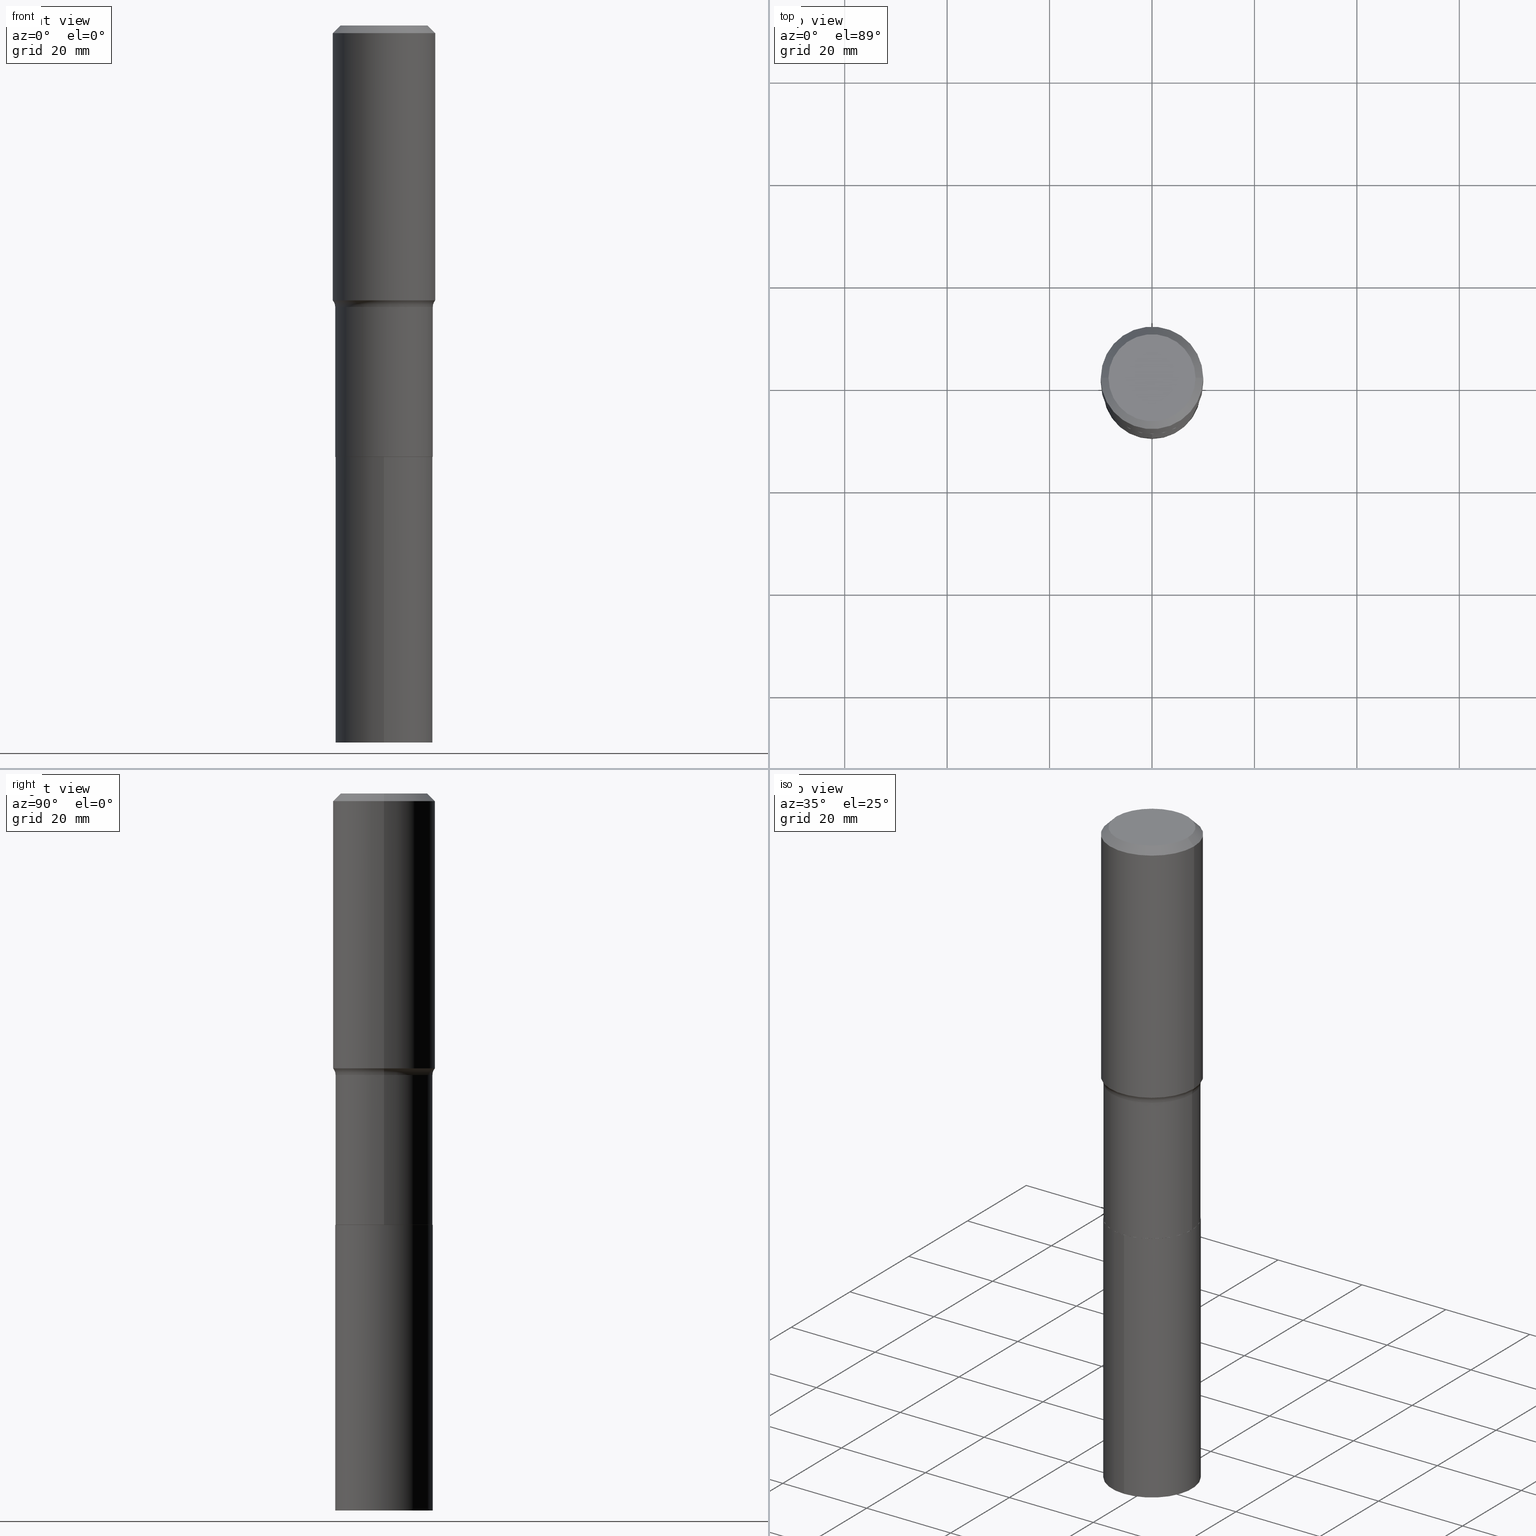
[diagram: canonical four-view strip — front | top / right | iso, engineering-drawing reading convention]
A machine part, canonical four-view strip (front | top / right | iso — engineering-drawing reading convention). The complete STEP part file that produces these views, byte-faithful:
ISO-10303-21;
HEADER;
FILE_DESCRIPTION (( 'STEP AP203' ),
    '1' );
FILE_NAME ('58861.STEP',
    '2024-04-19T14:46:31',
    ( '' ),
    ( '' ),
    'SwSTEP 2.0',
    'SolidWorks 2023',
    '' );
FILE_SCHEMA (( 'CONFIG_CONTROL_DESIGN' ));
ENDSEC;

DATA;
#1 = CARTESIAN_POINT ( 'NONE',  ( 0.000000000000000000, 0.000000000000000000, 0.000000000000000000 ) ) ;
#2 = ORIENTED_EDGE ( 'NONE', *, *, #219, .T. ) ;
#3 = ADVANCED_FACE ( 'NONE', ( #258 ), #411, .T. ) ;
#4 = DIRECTION ( 'NONE',  ( -6.982962677686265922E-15, -1.000000000000000000, 2.913971193241880372E-15 ) ) ;
#5 = FACE_OUTER_BOUND ( 'NONE', #6, .T. ) ;
#6 = EDGE_LOOP ( 'NONE', ( #194, #341, #262, #331 ) ) ;
#7 = DIRECTION ( 'NONE',  ( -2.445468806185136597E-29, 3.491481338843145583E-15, 1.000000000000000000 ) ) ;
#8 = ORIENTED_EDGE ( 'NONE', *, *, #208, .T. ) ;
#9 = AXIS2_PLACEMENT_3D ( 'NONE', #388, #83, #63 ) ;
#10 = DIRECTION ( 'NONE',  ( -2.445468806185136597E-29, 3.491481338843145583E-15, 1.000000000000000000 ) ) ;
#11 = APPROVAL_DATE_TIME ( #53, #442 ) ;
#12 = CARTESIAN_POINT ( 'NONE',  ( 1.444171603492641547E-30, -2.061894304653832726E-16, -0.05905500000000037109 ) ) ;
#13 = APPROVAL_ROLE ( '' ) ;
#14 = CARTESIAN_POINT ( 'NONE',  ( 1.347893496593123646E-28, -1.924434684343564878E-14, -5.511800000000000033 ) ) ;
#15 = ORIENTED_EDGE ( 'NONE', *, *, #23, .F. ) ;
#16 = FACE_OUTER_BOUND ( 'NONE', #37, .T. ) ;
#17 = AXIS2_PLACEMENT_3D ( 'NONE', #338, #113, #45 ) ;
#18 = EDGE_CURVE ( 'NONE', #302, #261, #298, .T. ) ;
#19 = DIRECTION ( 'NONE',  ( -2.444960686371016422E-29, 3.492208995337349843E-15, 1.000000000000000000 ) ) ;
#20 = CIRCLE ( 'NONE', #60, 0.3750000000000000555 ) ;
#21 = AXIS2_PLACEMENT_3D ( 'NONE', #384, #356, #282 ) ;
#22 = DIRECTION ( 'NONE',  ( 1.000000000000000000, -6.982962677686267499E-15, 4.876152824003125403E-29 ) ) ;
#23 = EDGE_CURVE ( 'NONE', #302, #185, #139, .T. ) ;
#24 = DESIGN_CONTEXT ( 'detailed design', #322, 'design' ) ;
#25 = ORIENTED_EDGE ( 'NONE', *, *, #130, .F. ) ;
#26 = CYLINDRICAL_SURFACE ( 'NONE', #108, 0.3937000000000001609 ) ;
#27 = ADVANCED_FACE ( 'NONE', ( #204 ), #171, .F. ) ;
#28 = FACE_OUTER_BOUND ( 'NONE', #59, .T. ) ;
#29 = SECURITY_CLASSIFICATION ( '', '', #250 ) ;
#30 = CC_DESIGN_SECURITY_CLASSIFICATION ( #29, ( #335 ) ) ;
#31 = CARTESIAN_POINT ( 'NONE',  ( 0.4549999999999998490, -1.073386108000546942E-14, -2.164299999999999446 ) ) ;
#32 = EDGE_CURVE ( 'NONE', #227, #190, #393, .T. ) ;
#33 = PERSON_AND_ORGANIZATION ( #274, #416 ) ;
#34 = CARTESIAN_POINT ( 'NONE',  ( -0.3745000000000000551, -8.916071277914525019E-15, -3.315799999999999859 ) ) ;
#35 = LINE ( 'NONE', #313, #211 ) ;
#36 = CARTESIAN_POINT ( 'NONE',  ( 0.3346450000000000258, -2.601499422326145188E-15, 4.096137381465387809E-18 ) ) ;
#37 = EDGE_LOOP ( 'NONE', ( #254, #50 ) ) ;
#38 = ADVANCED_FACE ( 'NONE', ( #367 ), #340, .F. ) ;
#39 = DIRECTION ( 'NONE',  ( -2.438088387897960049E-29, 3.491481338843145188E-15, 1.000000000000000000 ) ) ;
#40 = EDGE_CURVE ( 'NONE', #261, #227, #228, .T. ) ;
#41 = EDGE_LOOP ( 'NONE', ( #291, #8, #432, #327 ) ) ;
#42 = CIRCLE ( 'NONE', #270, 0.3937000000000000499 ) ;
#43 = CIRCLE ( 'NONE', #445, 0.3346450000000000258 ) ;
#44 = CARTESIAN_POINT ( 'NONE',  ( 1.444171603492641547E-30, -2.061894304653832726E-16, -0.05905500000000037109 ) ) ;
#45 = DIRECTION ( 'NONE',  ( -1.000000000000000000, 6.982962677686265922E-15, -4.876176775795935793E-29 ) ) ;
#46 = ORIENTED_EDGE ( 'NONE', *, *, #343, .T. ) ;
#47 = CARTESIAN_POINT ( 'NONE',  ( 8.107462733145581975E-29, -1.157530808266667831E-14, -3.315299999999999248 ) ) ;
#48 = CARTESIAN_POINT ( 'NONE',  ( 8.108685467548674776E-29, -1.157705382333610061E-14, -3.315799999999999859 ) ) ;
#49 = CARTESIAN_POINT ( 'NONE',  ( -2.618611004132215121E-15, -0.3750000000000192624, -5.511799999999999145 ) ) ;
#50 = ORIENTED_EDGE ( 'NONE', *, *, #265, .T. ) ;
#51 = ORIENTED_EDGE ( 'NONE', *, *, #168, .T. ) ;
#52 = PLANE ( 'NONE',  #457 ) ;
#53 = DATE_AND_TIME ( #332, #180 ) ;
#54 = CARTESIAN_POINT ( 'NONE',  ( -0.3346450000000000258, 2.439908260507010921E-15, 4.096137381431418257E-18 ) ) ;
#55 = AXIS2_PLACEMENT_3D ( 'NONE', #337, #92, #117 ) ;
#56 = FACE_OUTER_BOUND ( 'NONE', #191, .T. ) ;
#57 = CALENDAR_DATE ( 2024, 19, 4 ) ;
#58 = DIRECTION ( 'NONE',  ( 1.000000000000000000, -6.982962677686268288E-15, 0.000000000000000000 ) ) ;
#59 = EDGE_LOOP ( 'NONE', ( #336, #402, #292, #306 ) ) ;
#60 = AXIS2_PLACEMENT_3D ( 'NONE', #401, #94, #223 ) ;
#61 = CC_DESIGN_APPROVAL ( #138, ( #268 ) ) ;
#62 = CARTESIAN_POINT ( 'NONE',  ( 1.347781913481942727E-28, -1.924594477709692367E-14, -5.511800000000000033 ) ) ;
#63 = DIRECTION ( 'NONE',  ( 1.000000000000000000, -6.982962677686265922E-15, 0.000000000000000000 ) ) ;
#64 = DIRECTION ( 'NONE',  ( 6.982962677686265922E-15, 1.000000000000000000, -3.492208995337349843E-15 ) ) ;
#65 = LINE ( 'NONE', #247, #206 ) ;
#66 = PRODUCT_DEFINITION_SHAPE ( 'NONE', 'NONE',  #268 ) ;
#67 = DIRECTION ( 'NONE',  ( -6.982962677686266711E-15, -1.000000000000000000, 3.491481338843145583E-15 ) ) ;
#68 = DIRECTION ( 'NONE',  ( -2.444960686371016703E-29, 3.492208995337349843E-15, 1.000000000000000000 ) ) ;
#69 = AXIS2_PLACEMENT_3D ( 'NONE', #86, #10, #58 ) ;
#70 = CALENDAR_DATE ( 2024, 19, 4 ) ;
#71 = VECTOR ( 'NONE', #68, 39.37007874015748143 ) ;
#72 = ADVANCED_BREP_SHAPE_REPRESENTATION ( '58861', ( #74, #378, #288 ), #374 ) ;
#73 = EDGE_CURVE ( 'NONE', #465, #307, #42, .T. ) ;
#74 = MANIFOLD_SOLID_BREP ( 'Body-Move/Copy2[1]', #346 ) ;
#75 =( NAMED_UNIT ( * ) SI_UNIT ( $, .STERADIAN. ) SOLID_ANGLE_UNIT ( ) );
#76 = PERSON_AND_ORGANIZATION ( #274, #416 ) ;
#77 = EDGE_LOOP ( 'NONE', ( #160, #233, #81, #85 ) ) ;
#78 = APPLICATION_CONTEXT ( 'configuration controlled 3d designs of mechanical parts and assemblies' ) ;
#79 = DIRECTION ( 'NONE',  ( -1.000000000000000000, 6.982962677686265922E-15, 0.000000000000000000 ) ) ;
#80 = APPROVAL_DATE_TIME ( #358, #138 ) ;
#81 = ORIENTED_EDGE ( 'NONE', *, *, #280, .F. ) ;
#82 = CIRCLE ( 'NONE', #318, 0.3937000000000002720 ) ;
#83 = DIRECTION ( 'NONE',  ( -2.445468806185136597E-29, 3.491481338843145583E-15, 1.000000000000000000 ) ) ;
#84 = DIRECTION ( 'NONE',  ( -1.000000000000000000, 7.105427357601001859E-15, 0.000000000000000000 ) ) ;
#85 = ORIENTED_EDGE ( 'NONE', *, *, #18, .F. ) ;
#86 = CARTESIAN_POINT ( 'NONE',  ( 8.108685467548674776E-29, -1.157705382333610061E-14, -3.315799999999999859 ) ) ;
#87 = EDGE_LOOP ( 'NONE', ( #119, #225, #2, #213 ) ) ;
#88 = ORIENTED_EDGE ( 'NONE', *, *, #137, .F. ) ;
#89 = ADVANCED_FACE ( 'NONE', ( #5 ), #235, .T. ) ;
#90 = DIRECTION ( 'NONE',  ( 1.000000000000000000, -6.982962677686266711E-15, 4.883557194083112901E-29 ) ) ;
#91 = AXIS2_PLACEMENT_3D ( 'NONE', #48, #361, #125 ) ;
#92 = DIRECTION ( 'NONE',  ( -2.445468806185136597E-29, 3.491481338843145583E-15, 1.000000000000000000 ) ) ;
#93 = AXIS2_PLACEMENT_3D ( 'NONE', #47, #440, #399 ) ;
#94 = DIRECTION ( 'NONE',  ( -2.444960686371016422E-29, 3.492208995337349843E-15, 1.000000000000000000 ) ) ;
#95 = EDGE_CURVE ( 'NONE', #257, #190, #323, .T. ) ;
#96 = EDGE_CURVE ( 'NONE', #391, #465, #164, .T. ) ;
#97 = DIRECTION ( 'NONE',  ( -2.445468806185136877E-29, 3.491481338843145188E-15, 1.000000000000000000 ) ) ;
#98 = TOROIDAL_SURFACE ( 'NONE', #131, 0.4549999999999998490, 0.08000000000000007105 ) ;
#99 = ORIENTED_EDGE ( 'NONE', *, *, #369, .F. ) ;
#100 = AXIS2_PLACEMENT_3D ( 'NONE', #450, #240, #64 ) ;
#101 = LINE ( 'NONE', #458, #71 ) ;
#102 = CARTESIAN_POINT ( 'NONE',  ( -0.3749999999999998335, -6.901425313062074700E-15, -2.164299999999999446 ) ) ;
#103 = CARTESIAN_POINT ( 'NONE',  ( 0.3937000000000001609, -2.749192406205084400E-15, 1.919750796630860732E-29 ) ) ;
#104 = PERSON_AND_ORGANIZATION_ROLE ( 'design_owner' ) ;
#105 = FACE_OUTER_BOUND ( 'NONE', #198, .T. ) ;
#106 = CARTESIAN_POINT ( 'NONE',  ( 8.107462733145581975E-29, -1.157530808266667831E-14, -3.315299999999999248 ) ) ;
#107 = AXIS2_PLACEMENT_3D ( 'NONE', #126, #7, #437 ) ;
#108 = AXIS2_PLACEMENT_3D ( 'NONE', #379, #414, #241 ) ;
#109 = APPROVAL_ROLE ( '' ) ;
#110 = EDGE_LOOP ( 'NONE', ( #305, #197, #51, #88 ) ) ;
#111 = EDGE_LOOP ( 'NONE', ( #435, #124 ) ) ;
#112 = FACE_OUTER_BOUND ( 'NONE', #87, .T. ) ;
#113 = DIRECTION ( 'NONE',  ( 2.438088387897960049E-29, -3.491481338843145188E-15, -1.000000000000000000 ) ) ;
#114 = DIRECTION ( 'NONE',  ( -2.445468806185136597E-29, 3.491481338843145583E-15, 1.000000000000000000 ) ) ;
#115 = COORDINATED_UNIVERSAL_TIME_OFFSET ( 5, 0, .BEHIND. ) ;
#116 = VERTEX_POINT ( 'NONE', #49 ) ;
#117 = DIRECTION ( 'NONE',  ( 1.000000000000000000, -6.982962677686265922E-15, 4.876176775795935793E-29 ) ) ;
#118 = PERSON_AND_ORGANIZATION_ROLE ( 'design_supplier' ) ;
#119 = ORIENTED_EDGE ( 'NONE', *, *, #95, .F. ) ;
#120 = DIRECTION ( 'NONE',  ( 2.445468806185136597E-29, -3.491481338843145583E-15, -1.000000000000000000 ) ) ;
#121 = ORIENTED_EDGE ( 'NONE', *, *, #216, .T. ) ;
#122 = APPROVAL_PERSON_ORGANIZATION ( #355, #442, #109 ) ;
#123 =( NAMED_UNIT ( * ) PLANE_ANGLE_UNIT ( ) SI_UNIT ( $, .RADIAN. ) );
#124 = ORIENTED_EDGE ( 'NONE', *, *, #417, .F. ) ;
#125 = DIRECTION ( 'NONE',  ( -6.982962677686265922E-15, -1.000000000000000000, 2.913971193241880372E-15 ) ) ;
#126 = CARTESIAN_POINT ( 'NONE',  ( -1.001697619218024707E-46, 1.430158722866394097E-32, 4.096137381448120692E-18 ) ) ;
#127 = PLANE ( 'NONE',  #17 ) ;
#128 = EDGE_CURVE ( 'NONE', #146, #391, #188, .T. ) ;
#129 = DIRECTION ( 'NONE',  ( 2.445468806185136597E-29, -3.491481338843145583E-15, -1.000000000000000000 ) ) ;
#130 = EDGE_CURVE ( 'NONE', #185, #302, #310, .T. ) ;
#131 = AXIS2_PLACEMENT_3D ( 'NONE', #167, #447, #207 ) ;
#132 = DIRECTION ( 'NONE',  ( 1.000000000000000000, -6.982962677686265922E-15, 4.876176775795935793E-29 ) ) ;
#133 = AXIS2_PLACEMENT_3D ( 'NONE', #106, #279, #382 ) ;
#134 = ADVANCED_FACE ( 'NONE', ( #56 ), #52, .F. ) ;
#135 = DIRECTION ( 'NONE',  ( 1.000000000000000000, -6.982962677686269077E-15, 0.000000000000000000 ) ) ;
#136 = ORIENTED_EDGE ( 'NONE', *, *, #339, .T. ) ;
#137 = EDGE_CURVE ( 'NONE', #396, #446, #20, .T. ) ;
#138 = APPROVAL ( #172, 'UNSPECIFIED' ) ;
#139 = CIRCLE ( 'NONE', #69, 0.3745000000000000551 ) ;
#140 = VECTOR ( 'NONE', #149, 39.37007874015748143 ) ;
#141 = ADVANCED_FACE ( 'NONE', ( #466 ), #203, .T. ) ;
#142 = CARTESIAN_POINT ( 'NONE',  ( 5.292728137226489958E-29, -7.556613061658217748E-15, -2.164299999999999446 ) ) ;
#143 = CARTESIAN_POINT ( 'NONE',  ( 8.108685467548674776E-29, -1.157705382333610061E-14, -3.315799999999999859 ) ) ;
#144 = APPROVAL ( #148, 'UNSPECIFIED' ) ;
#145 = DIRECTION ( 'NONE',  ( 1.000000000000000000, -6.982962677686266711E-15, 4.876176775795935793E-29 ) ) ;
#146 = VERTEX_POINT ( 'NONE', #54 ) ;
#147 = CARTESIAN_POINT ( 'NONE',  ( 8.108685467548674776E-29, -1.157705382333610061E-14, -3.315799999999999859 ) ) ;
#148 = APPROVAL_STATUS ( 'not_yet_approved' ) ;
#149 = DIRECTION ( 'NONE',  ( -2.445468806185136877E-29, 3.491481338843145188E-15, 1.000000000000000000 ) ) ;
#150 = VECTOR ( 'NONE', #312, 39.37007874015748143 ) ;
#151 = DIRECTION ( 'NONE',  ( 1.000000000000000000, -6.982962677686281699E-15, 0.000000000000000000 ) ) ;
#152 = PERSON_AND_ORGANIZATION ( #274, #416 ) ;
#153 = ADVANCED_FACE ( 'NONE', ( #112 ), #98, .F. ) ;
#154 = CARTESIAN_POINT ( 'NONE',  ( 0.000000000000000000, 0.000000000000000000, 0.000000000000000000 ) ) ;
#155 = APPROVAL_PERSON_ORGANIZATION ( #152, #138, #13 ) ;
#156 = EDGE_CURVE ( 'NONE', #329, #257, #82, .T. ) ;
#157 = DIRECTION ( 'NONE',  ( -2.445468806185136597E-29, 3.491481338843145583E-15, 1.000000000000000000 ) ) ;
#158 = ORIENTED_EDGE ( 'NONE', *, *, #256, .F. ) ;
#159 = DIRECTION ( 'NONE',  ( 7.105427357601001859E-15, 1.000000000000000000, -3.491481338843145583E-15 ) ) ;
#160 = ORIENTED_EDGE ( 'NONE', *, *, #23, .T. ) ;
#161 = EDGE_LOOP ( 'NONE', ( #230, #264, #372, #439 ) ) ;
#162 = DATE_AND_TIME ( #57, #300 ) ;
#163 = LOCAL_TIME ( 10, 46, 31.00000000000000000, #115 ) ;
#164 = LINE ( 'NONE', #231, #251 ) ;
#165 = CARTESIAN_POINT ( 'NONE',  ( 1.444171603492641547E-30, -2.061894304653832726E-16, -0.05905500000000037109 ) ) ;
#166 = DIRECTION ( 'NONE',  ( -6.982962677686265922E-15, -1.000000000000000000, 3.492208995337349843E-15 ) ) ;
#167 = CARTESIAN_POINT ( 'NONE',  ( 5.292728137226489958E-29, -7.556613061658217748E-15, -2.164299999999999446 ) ) ;
#168 = EDGE_CURVE ( 'NONE', #116, #446, #410, .T. ) ;
#169 = CIRCLE ( 'NONE', #91, 0.3750000000000000555 ) ;
#170 = ADVANCED_FACE ( 'NONE', ( #16 ), #127, .F. ) ;
#171 = TOROIDAL_SURFACE ( 'NONE', #334, 0.4549999999999998490, 0.08000000000000007105 ) ;
#172 = APPROVAL_STATUS ( 'not_yet_approved' ) ;
#173 = AXIS2_PLACEMENT_3D ( 'NONE', #165, #120, #431 ) ;
#174 = ADVANCED_FACE ( 'NONE', ( #434 ), #319, .T. ) ;
#175 = PERSON_AND_ORGANIZATION ( #274, #416 ) ;
#176 = PERSON_AND_ORGANIZATION ( #274, #416 ) ;
#177 = EDGE_CURVE ( 'NONE', #446, #396, #169, .T. ) ;
#178 = CARTESIAN_POINT ( 'NONE',  ( 0.3749999999999998890, -1.419391908679902675E-14, -3.315299999999999248 ) ) ;
#179 = UNCERTAINTY_MEASURE_WITH_UNIT (LENGTH_MEASURE( 1.000000000000000082E-05 ), #364, 'distance_accuracy_value', 'NONE');
#180 = LOCAL_TIME ( 10, 46, 31.00000000000000000, #224 ) ;
#181 = COORDINATED_UNIVERSAL_TIME_OFFSET ( 5, 0, .BEHIND. ) ;
#182 = ADVANCED_FACE ( 'NONE', ( #186 ), #324, .T. ) ;
#183 = CARTESIAN_POINT ( 'NONE',  ( 8.108685467548674776E-29, -1.157705382333610061E-14, -3.315799999999999859 ) ) ;
#184 = LENGTH_MEASURE_WITH_UNIT ( LENGTH_MEASURE( 0.02539999999999999897 ), #260 );
#185 = VERTEX_POINT ( 'NONE', #286 ) ;
#186 = FACE_OUTER_BOUND ( 'NONE', #433, .T. ) ;
#187 = ORIENTED_EDGE ( 'NONE', *, *, #177, .F. ) ;
#188 = CIRCLE ( 'NONE', #107, 0.3346450000000000258 ) ;
#189 = AXIS2_PLACEMENT_3D ( 'NONE', #142, #215, #285 ) ;
#190 = VERTEX_POINT ( 'NONE', #102 ) ;
#191 = EDGE_LOOP ( 'NONE', ( #15, #25 ) ) ;
#192 = DIRECTION ( 'NONE',  ( 1.000000000000000000, -6.982962677686268288E-15, 0.000000000000000000 ) ) ;
#193 = CARTESIAN_POINT ( 'NONE',  ( -0.4549999999999998490, -4.323643613949763764E-15, -2.164299999999999446 ) ) ;
#194 = ORIENTED_EDGE ( 'NONE', *, *, #280, .T. ) ;
#195 = DIRECTION ( 'NONE',  ( -2.445468806185136597E-29, 3.491481338843145583E-15, 1.000000000000000000 ) ) ;
#196 = EDGE_LOOP ( 'NONE', ( #266, #387, #136, #290 ) ) ;
#197 = ORIENTED_EDGE ( 'NONE', *, *, #417, .T. ) ;
#198 = EDGE_LOOP ( 'NONE', ( #328, #425 ) ) ;
#199 = ORIENTED_EDGE ( 'NONE', *, *, #339, .F. ) ;
#200 = LOCAL_TIME ( 10, 46, 31.00000000000000000, #423 ) ;
#201 = DIRECTION ( 'NONE',  ( -2.445468806185136597E-29, 3.491481338843145583E-15, 1.000000000000000000 ) ) ;
#202 = EDGE_LOOP ( 'NONE', ( #99, #295, #352, #443 ) ) ;
#203 = CYLINDRICAL_SURFACE ( 'NONE', #243, 0.3749999999999998335 ) ;
#204 = FACE_OUTER_BOUND ( 'NONE', #202, .T. ) ;
#205 = EDGE_CURVE ( 'NONE', #366, #190, #65, .T. ) ;
#206 = VECTOR ( 'NONE', #383, 39.37007874015748143 ) ;
#207 = DIRECTION ( 'NONE',  ( 1.000000000000000000, -6.982962677686266711E-15, 4.883557194083112901E-29 ) ) ;
#208 = EDGE_CURVE ( 'NONE', #366, #261, #311, .T. ) ;
#209 = DIRECTION ( 'NONE',  ( -2.444960686371016422E-29, 3.492208995337349843E-15, 1.000000000000000000 ) ) ;
#210 = CARTESIAN_POINT ( 'NONE',  ( -1.001697619218024707E-46, 1.430158722866394097E-32, 4.096137381448120692E-18 ) ) ;
#211 = VECTOR ( 'NONE', #348, 39.37007874015748143 ) ;
#212 = CC_DESIGN_PERSON_AND_ORGANIZATION_ASSIGNMENT ( #76, #118, ( #335 ) ) ;
#213 = ORIENTED_EDGE ( 'NONE', *, *, #32, .T. ) ;
#214 = EDGE_CURVE ( 'NONE', #190, #227, #244, .T. ) ;
#215 = DIRECTION ( 'NONE',  ( -2.445468806185136597E-29, 3.491481338843145583E-15, 1.000000000000000000 ) ) ;
#216 = EDGE_CURVE ( 'NONE', #257, #307, #242, .T. ) ;
#217 = FACE_OUTER_BOUND ( 'NONE', #196, .T. ) ;
#218 = CARTESIAN_POINT ( 'NONE',  ( 5.167022714851833902E-29, -7.377139033896165058E-15, -2.112896595443491066 ) ) ;
#219 = EDGE_CURVE ( 'NONE', #329, #227, #408, .T. ) ;
#220 = CIRCLE ( 'NONE', #385, 0.3750000000000000555 ) ;
#221 = DATE_TIME_ROLE ( 'creation_date' ) ;
#222 = APPLICATION_PROTOCOL_DEFINITION ( 'international standard', 'config_control_design', 1994, #78 ) ;
#223 = DIRECTION ( 'NONE',  ( -6.982962677686265922E-15, -1.000000000000000000, 2.913971193241880372E-15 ) ) ;
#224 = COORDINATED_UNIVERSAL_TIME_OFFSET ( 5, 0, .BEHIND. ) ;
#225 = ORIENTED_EDGE ( 'NONE', *, *, #156, .F. ) ;
#226 = CARTESIAN_POINT ( 'NONE',  ( 8.108685467548674776E-29, -1.157705382333610061E-14, -3.315799999999999859 ) ) ;
#227 = VERTEX_POINT ( 'NONE', #451 ) ;
#228 = LINE ( 'NONE', #389, #468 ) ;
#229 = CIRCLE ( 'NONE', #21, 0.3750000000000000555 ) ;
#230 = ORIENTED_EDGE ( 'NONE', *, *, #96, .F. ) ;
#231 = CARTESIAN_POINT ( 'NONE',  ( 0.3937000000000000499, -2.907167492188035412E-15, -0.05905500000000037109 ) ) ;
#232 = DIRECTION ( 'NONE',  ( 1.000000000000000000, -6.982962677686268288E-15, 0.000000000000000000 ) ) ;
#233 = ORIENTED_EDGE ( 'NONE', *, *, #256, .T. ) ;
#234 = EDGE_CURVE ( 'NONE', #116, #430, #229, .T. ) ;
#235 = CYLINDRICAL_SURFACE ( 'NONE', #55, 0.3749999999999998335 ) ;
#236 = CIRCLE ( 'NONE', #93, 0.3749999999999998890 ) ;
#237 = ORIENTED_EDGE ( 'NONE', *, *, #73, .F. ) ;
#238 = PRODUCT_RELATED_PRODUCT_CATEGORY ( 'detail', '', ( #316 ) ) ;
#239 = CARTESIAN_POINT ( 'NONE',  ( 2.664535259100510198E-15, 0.3749999999999883982, -3.315800000000000747 ) ) ;
#240 = DIRECTION ( 'NONE',  ( 2.444960686371015862E-29, -3.492208995337349843E-15, -1.000000000000000000 ) ) ;
#241 = DIRECTION ( 'NONE',  ( 1.000000000000000000, -6.982962677686266711E-15, 4.876176775795935793E-29 ) ) ;
#242 = LINE ( 'NONE', #415, #140 ) ;
#243 = AXIS2_PLACEMENT_3D ( 'NONE', #154, #444, #132 ) ;
#244 = CIRCLE ( 'NONE', #189, 0.3749999999999998335 ) ;
#245 = ORIENTED_EDGE ( 'NONE', *, *, #208, .F. ) ;
#246 = APPROVAL_ROLE ( '' ) ;
#247 = CARTESIAN_POINT ( 'NONE',  ( -0.3749999999999998335, 2.664535259100374514E-15, -1.844600658845588757E-29 ) ) ;
#248 = DIRECTION ( 'NONE',  ( -6.982962677686265922E-15, -1.000000000000000000, 2.913971193241880372E-15 ) ) ;
#249 = CC_DESIGN_DATE_AND_TIME_ASSIGNMENT ( #162, #301, ( #29 ) ) ;
#250 = SECURITY_CLASSIFICATION_LEVEL ( 'unclassified' ) ;
#251 = VECTOR ( 'NONE', #365, 39.37007874015748143 ) ;
#252 = CIRCLE ( 'NONE', #412, 0.3937000000000002720 ) ;
#253 = DATE_AND_TIME ( #70, #200 ) ;
#254 = ORIENTED_EDGE ( 'NONE', *, *, #128, .T. ) ;
#255 = DIRECTION ( 'NONE',  ( 0.000000000000000000, 0.000000000000000000, 1.000000000000000000 ) ) ;
#256 = EDGE_CURVE ( 'NONE', #185, #366, #315, .T. ) ;
#257 = VERTEX_POINT ( 'NONE', #278 ) ;
#258 = FACE_OUTER_BOUND ( 'NONE', #161, .T. ) ;
#259 = ADVANCED_FACE ( 'NONE', ( #217 ), #26, .T. ) ;
#260 =( LENGTH_UNIT ( ) NAMED_UNIT ( * ) SI_UNIT ( $, .METRE. ) );
#261 = VERTEX_POINT ( 'NONE', #178 ) ;
#262 = ORIENTED_EDGE ( 'NONE', *, *, #32, .F. ) ;
#263 = CARTESIAN_POINT ( 'NONE',  ( 8.108685467548674776E-29, -1.157705382333610061E-14, -3.315799999999999859 ) ) ;
#264 = ORIENTED_EDGE ( 'NONE', *, *, #128, .F. ) ;
#265 = EDGE_CURVE ( 'NONE', #391, #146, #43, .T. ) ;
#266 = ORIENTED_EDGE ( 'NONE', *, *, #216, .F. ) ;
#267 = COORDINATED_UNIVERSAL_TIME_OFFSET ( 5, 0, .BEHIND. ) ;
#268 = PRODUCT_DEFINITION ( 'UNKNOWN', '', #335, #24 ) ;
#269 = DIRECTION ( 'NONE',  ( -2.445468806185136597E-29, 3.491481338843145583E-15, 1.000000000000000000 ) ) ;
#270 = AXIS2_PLACEMENT_3D ( 'NONE', #44, #195, #294 ) ;
#271 = CONICAL_SURFACE ( 'NONE', #325, 0.3745000000000000551, 0.7853981633971067744 ) ;
#272 = FACE_OUTER_BOUND ( 'NONE', #110, .T. ) ;
#273 = FACE_OUTER_BOUND ( 'NONE', #362, .T. ) ;
#274 = PERSON ( 'UNSPECIFIED', 'UNSPECIFIED', 'UNSPECIFIED', ('UNSPECIFIED'), ('UNSPECIFIED'), ('UNSPECIFIED') ) ;
#275 = CC_DESIGN_DATE_AND_TIME_ASSIGNMENT ( #422, #221, ( #268 ) ) ;
#276 = PLANE ( 'NONE',  #100 ) ;
#277 = DIMENSIONAL_EXPONENTS ( 1.000000000000000000, 0.000000000000000000, 0.000000000000000000, 0.000000000000000000, 0.000000000000000000, 0.000000000000000000, 0.000000000000000000 ) ;
#278 = CARTESIAN_POINT ( 'NONE',  ( -0.3937000000000002720, -4.579732283208647905E-15, -2.112896595443491066 ) ) ;
#279 = DIRECTION ( 'NONE',  ( -2.445468806185136597E-29, 3.491481338843145583E-15, 1.000000000000000000 ) ) ;
#280 = EDGE_CURVE ( 'NONE', #261, #366, #236, .T. ) ;
#281 = DIRECTION ( 'NONE',  ( -6.982962677686265922E-15, -1.000000000000000000, 2.913971193241880372E-15 ) ) ;
#282 = DIRECTION ( 'NONE',  ( -6.982962677686265922E-15, -1.000000000000000000, 2.913971193241880372E-15 ) ) ;
#283 = AXIS2_PLACEMENT_3D ( 'NONE', #14, #400, #166 ) ;
#284 = CIRCLE ( 'NONE', #9, 0.3937000000000000499 ) ;
#285 = DIRECTION ( 'NONE',  ( 1.000000000000000000, -6.982962677686265922E-15, 0.000000000000000000 ) ) ;
#286 = CARTESIAN_POINT ( 'NONE',  ( -0.3745000000000000551, -8.913422050740414606E-15, -3.315799999999999859 ) ) ;
#287 = APPROVAL_STATUS ( 'not_yet_approved' ) ;
#288 = AXIS2_PLACEMENT_3D ( 'NONE', #357, #255, #420 ) ;
#289 = CC_DESIGN_APPROVAL ( #144, ( #29 ) ) ;
#290 = ORIENTED_EDGE ( 'NONE', *, *, #438, .F. ) ;
#291 = ORIENTED_EDGE ( 'NONE', *, *, #205, .F. ) ;
#292 = ORIENTED_EDGE ( 'NONE', *, *, #73, .T. ) ;
#293 = ADVANCED_FACE ( 'NONE', ( #273 ), #455, .T. ) ;
#294 = DIRECTION ( 'NONE',  ( 1.000000000000000000, -6.982962677686265922E-15, 0.000000000000000000 ) ) ;
#295 = ORIENTED_EDGE ( 'NONE', *, *, #95, .T. ) ;
#296 = CARTESIAN_POINT ( 'NONE',  ( 8.108685467548674776E-29, -1.157705382333610061E-14, -3.315799999999999859 ) ) ;
#297 = CC_DESIGN_PERSON_AND_ORGANIZATION_ASSIGNMENT ( #33, #467, ( #268 ) ) ;
#298 = LINE ( 'NONE', #397, #380 ) ;
#299 = CARTESIAN_POINT ( 'NONE',  ( 0.3937000000000000499, -2.955381836670466588E-15, -0.05905500000000037109 ) ) ;
#300 = LOCAL_TIME ( 10, 46, 31.00000000000000000, #267 ) ;
#301 = DATE_TIME_ROLE ( 'classification_date' ) ;
#302 = VERTEX_POINT ( 'NONE', #418 ) ;
#303 = ORIENTED_EDGE ( 'NONE', *, *, #156, .T. ) ;
#304 = PERSON_AND_ORGANIZATION_ROLE ( 'classification_officer' ) ;
#305 = ORIENTED_EDGE ( 'NONE', *, *, #343, .F. ) ;
#306 = ORIENTED_EDGE ( 'NONE', *, *, #456, .F. ) ;
#307 = VERTEX_POINT ( 'NONE', #320 ) ;
#308 = AXIS2_PLACEMENT_3D ( 'NONE', #147, #19, #281 ) ;
#309 = DIRECTION ( 'NONE',  ( -2.445468806185136597E-29, 3.491481338843145583E-15, 1.000000000000000000 ) ) ;
#310 = CIRCLE ( 'NONE', #405, 0.3745000000000000551 ) ;
#311 = CIRCLE ( 'NONE', #133, 0.3749999999999998890 ) ;
#312 = DIRECTION ( 'NONE',  ( -0.7071067811863059882, 7.493145998869481680E-15, 0.7071067811867890462 ) ) ;
#313 = CARTESIAN_POINT ( 'NONE',  ( -0.3937000000000000499, 2.543002975739700240E-15, -0.05905500000000037109 ) ) ;
#314 = CARTESIAN_POINT ( 'NONE',  ( -0.3749999999999998890, -6.901425313062073912E-15, -3.315299999999999248 ) ) ;
#315 = LINE ( 'NONE', #34, #150 ) ;
#316 = PRODUCT ( '58861', '58861', '', ( #464 ) ) ;
#317 = CARTESIAN_POINT ( 'NONE',  ( 0.3937000000000002720, -1.012633144010124985E-14, -2.112896595443491066 ) ) ;
#318 = AXIS2_PLACEMENT_3D ( 'NONE', #413, #309, #135 ) ;
#319 = CONICAL_SURFACE ( 'NONE', #406, 0.3745000000000000551, 0.7853981633971067744 ) ;
#320 = CARTESIAN_POINT ( 'NONE',  ( -0.3937000000000000499, -9.942574814932580477E-16, -0.05905500000000037109 ) ) ;
#321 = CARTESIAN_POINT ( 'NONE',  ( -2.618611004132269158E-15, -0.3750000000000116573, -3.315799999999998526 ) ) ;
#322 = APPLICATION_CONTEXT ( 'configuration controlled 3d designs of mechanical parts and assemblies' ) ;
#323 = CIRCLE ( 'NONE', #426, 0.08000000000000002942 ) ;
#324 = CYLINDRICAL_SURFACE ( 'NONE', #449, 0.3937000000000001609 ) ;
#325 = AXIS2_PLACEMENT_3D ( 'NONE', #143, #114, #462 ) ;
#326 = CALENDAR_DATE ( 2024, 19, 4 ) ;
#327 = ORIENTED_EDGE ( 'NONE', *, *, #214, .F. ) ;
#328 = ORIENTED_EDGE ( 'NONE', *, *, #177, .T. ) ;
#329 = VERTEX_POINT ( 'NONE', #317 ) ;
#330 = DIRECTION ( 'NONE',  ( -2.445468806185136597E-29, 3.491481338843145583E-15, 1.000000000000000000 ) ) ;
#331 = ORIENTED_EDGE ( 'NONE', *, *, #40, .F. ) ;
#332 = CALENDAR_DATE ( 2024, 19, 4 ) ;
#333 = DIRECTION ( 'NONE',  ( 0.7071067811863059882, -2.468850131079726789E-15, 0.7071067811867890462 ) ) ;
#334 = AXIS2_PLACEMENT_3D ( 'NONE', #370, #330, #90 ) ;
#335 = PRODUCT_DEFINITION_FORMATION_WITH_SPECIFIED_SOURCE ( 'ANY', '', #316, .NOT_KNOWN. ) ;
#336 = ORIENTED_EDGE ( 'NONE', *, *, #265, .F. ) ;
#337 = CARTESIAN_POINT ( 'NONE',  ( 0.000000000000000000, 0.000000000000000000, 0.000000000000000000 ) ) ;
#338 = CARTESIAN_POINT ( 'NONE',  ( -5.008488096090123536E-47, 7.150793614331970485E-33, 2.048068690724060346E-18 ) ) ;
#339 = EDGE_CURVE ( 'NONE', #329, #465, #459, .T. ) ;
#340 = PLANE ( 'NONE',  #283 ) ;
#341 = ORIENTED_EDGE ( 'NONE', *, *, #205, .T. ) ;
#342 = LOCAL_TIME ( 10, 46, 31.00000000000000000, #181 ) ;
#343 = EDGE_CURVE ( 'NONE', #430, #396, #101, .T. ) ;
#344 = CC_DESIGN_PERSON_AND_ORGANIZATION_ASSIGNMENT ( #428, #104, ( #316 ) ) ;
#345 = AXIS2_PLACEMENT_3D ( 'NONE', #12, #129, #79 ) ;
#346 = CLOSED_SHELL ( 'NONE', ( #293, #38, #424, #375 ) ) ;
#347 = DIRECTION ( 'NONE',  ( -2.445468806185136597E-29, 3.491481338843145583E-15, 1.000000000000000000 ) ) ;
#348 = DIRECTION ( 'NONE',  ( -0.7071067811865451302, 2.468850131082231817E-15, -0.7071067811865499042 ) ) ;
#349 = DIRECTION ( 'NONE',  ( 1.000000000000000000, -6.982962677686269077E-15, 0.000000000000000000 ) ) ;
#350 = CLOSED_SHELL ( 'NONE', ( #174, #460, #182, #27, #89, #141, #153, #259, #3, #170, #134, #377 ) ) ;
#351 = CONICAL_SURFACE ( 'NONE', #173, 0.3937000000000000499, 0.7853981633974449483 ) ;
#352 = ORIENTED_EDGE ( 'NONE', *, *, #214, .T. ) ;
#353 = PERSON_AND_ORGANIZATION ( #274, #416 ) ;
#354 = SHAPE_DEFINITION_REPRESENTATION ( #66, #72 ) ;
#355 = PERSON_AND_ORGANIZATION ( #274, #416 ) ;
#356 = DIRECTION ( 'NONE',  ( -2.444960686371016422E-29, 3.492208995337349843E-15, 1.000000000000000000 ) ) ;
#357 = CARTESIAN_POINT ( 'NONE',  ( 0.000000000000000000, 0.000000000000000000, 0.000000000000000000 ) ) ;
#358 = DATE_AND_TIME ( #390, #342 ) ;
#359 = ORIENTED_EDGE ( 'NONE', *, *, #130, .T. ) ;
#360 = CARTESIAN_POINT ( 'NONE',  ( 2.664535259100482982E-15, 0.3749999999999807931, -5.511800000000000921 ) ) ;
#361 = DIRECTION ( 'NONE',  ( -2.444960686371016422E-29, 3.492208995337349843E-15, 1.000000000000000000 ) ) ;
#362 = EDGE_LOOP ( 'NONE', ( #463, #46, #187, #368 ) ) ;
#363 = DIRECTION ( 'NONE',  ( -2.445468806185136877E-29, 3.491481338843145188E-15, 1.000000000000000000 ) ) ;
#364 =( CONVERSION_BASED_UNIT ( 'INCH', #184 ) LENGTH_UNIT ( ) NAMED_UNIT ( #277 ) );
#365 = DIRECTION ( 'NONE',  ( 0.7071067811865451302, -7.319954787623248157E-15, -0.7071067811865499042 ) ) ;
#366 = VERTEX_POINT ( 'NONE', #314 ) ;
#367 = FACE_OUTER_BOUND ( 'NONE', #111, .T. ) ;
#368 = ORIENTED_EDGE ( 'NONE', *, *, #168, .F. ) ;
#369 = EDGE_CURVE ( 'NONE', #257, #329, #252, .T. ) ;
#370 = CARTESIAN_POINT ( 'NONE',  ( 5.292728137226489958E-29, -7.556613061658217748E-15, -2.164299999999999446 ) ) ;
#371 = AXIS2_PLACEMENT_3D ( 'NONE', #183, #386, #4 ) ;
#372 = ORIENTED_EDGE ( 'NONE', *, *, #456, .T. ) ;
#373 = DIRECTION ( 'NONE',  ( -2.444960686371016703E-29, 3.492208995337349843E-15, 1.000000000000000000 ) ) ;
#374 =( GEOMETRIC_REPRESENTATION_CONTEXT ( 3 ) GLOBAL_UNCERTAINTY_ASSIGNED_CONTEXT ( ( #179 ) ) GLOBAL_UNIT_ASSIGNED_CONTEXT ( ( #364, #123, #75 ) ) REPRESENTATION_CONTEXT ( 'NONE', 'WORKASPACE' ) );
#375 = ADVANCED_FACE ( 'NONE', ( #105 ), #276, .F. ) ;
#376 = PERSON_AND_ORGANIZATION_ROLE ( 'creator' ) ;
#377 = ADVANCED_FACE ( 'NONE', ( #454 ), #271, .T. ) ;
#378 = MANIFOLD_SOLID_BREP ( 'Body-Move/Copy2[2]', #350 ) ;
#379 = CARTESIAN_POINT ( 'NONE',  ( 0.000000000000000000, 0.000000000000000000, 0.000000000000000000 ) ) ;
#380 = VECTOR ( 'NONE', #333, 39.37007874015748143 ) ;
#381 = AXIS2_PLACEMENT_3D ( 'NONE', #31, #67, #151 ) ;
#382 = DIRECTION ( 'NONE',  ( 1.000000000000000000, -6.982962677686264344E-15, 0.000000000000000000 ) ) ;
#383 = DIRECTION ( 'NONE',  ( -2.445468806185136877E-29, 3.491481338843145188E-15, 1.000000000000000000 ) ) ;
#384 = CARTESIAN_POINT ( 'NONE',  ( 1.347781913481942727E-28, -1.924594477709692367E-14, -5.511800000000000033 ) ) ;
#385 = AXIS2_PLACEMENT_3D ( 'NONE', #62, #209, #248 ) ;
#386 = DIRECTION ( 'NONE',  ( -2.444960686371016422E-29, 3.492208995337349843E-15, 1.000000000000000000 ) ) ;
#387 = ORIENTED_EDGE ( 'NONE', *, *, #369, .T. ) ;
#388 = CARTESIAN_POINT ( 'NONE',  ( 1.444171603492641547E-30, -2.061894304653832726E-16, -0.05905500000000037109 ) ) ;
#389 = CARTESIAN_POINT ( 'NONE',  ( 0.3749999999999998335, -2.618611004132348439E-15, 1.828566290923475082E-29 ) ) ;
#390 = CALENDAR_DATE ( 2024, 19, 4 ) ;
#391 = VERTEX_POINT ( 'NONE', #36 ) ;
#392 = CYLINDRICAL_SURFACE ( 'NONE', #371, 0.3750000000000000555 ) ;
#393 = CIRCLE ( 'NONE', #448, 0.3749999999999998335 ) ;
#394 = VECTOR ( 'NONE', #373, 39.37007874015748143 ) ;
#395 = CARTESIAN_POINT ( 'NONE',  ( 5.292728137226489958E-29, -7.556613061658217748E-15, -2.164299999999999446 ) ) ;
#396 = VERTEX_POINT ( 'NONE', #239 ) ;
#397 = CARTESIAN_POINT ( 'NONE',  ( 0.3745000000000000551, -1.419217334612960919E-14, -3.315799999999999859 ) ) ;
#398 = EDGE_LOOP ( 'NONE', ( #158, #359, #452, #245 ) ) ;
#399 = DIRECTION ( 'NONE',  ( 1.000000000000000000, -6.982962677686264344E-15, 0.000000000000000000 ) ) ;
#400 = DIRECTION ( 'NONE',  ( -2.444960686371015862E-29, 3.492208995337349843E-15, 1.000000000000000000 ) ) ;
#401 = CARTESIAN_POINT ( 'NONE',  ( 8.108685467548674776E-29, -1.157705382333610061E-14, -3.315799999999999859 ) ) ;
#402 = ORIENTED_EDGE ( 'NONE', *, *, #96, .T. ) ;
#403 = CC_DESIGN_PERSON_AND_ORGANIZATION_ASSIGNMENT ( #353, #304, ( #29 ) ) ;
#404 = DIRECTION ( 'NONE',  ( 1.000000000000000000, -6.982962677686265922E-15, 0.000000000000000000 ) ) ;
#405 = AXIS2_PLACEMENT_3D ( 'NONE', #263, #441, #232 ) ;
#406 = AXIS2_PLACEMENT_3D ( 'NONE', #296, #201, #192 ) ;
#407 = CARTESIAN_POINT ( 'NONE',  ( -2.618611004132269158E-15, -0.3750000000000116573, -3.315799999999998526 ) ) ;
#408 = CIRCLE ( 'NONE', #381, 0.08000000000000002942 ) ;
#409 = DIRECTION ( 'NONE',  ( 1.000000000000000000, -6.982962677686265922E-15, 4.876176775795935793E-29 ) ) ;
#410 = LINE ( 'NONE', #407, #394 ) ;
#411 = CONICAL_SURFACE ( 'NONE', #345, 0.3937000000000000499, 0.7853981633974449483 ) ;
#412 = AXIS2_PLACEMENT_3D ( 'NONE', #218, #421, #349 ) ;
#413 = CARTESIAN_POINT ( 'NONE',  ( 5.167022714851833902E-29, -7.377139033896165058E-15, -2.112896595443491066 ) ) ;
#414 = DIRECTION ( 'NONE',  ( -2.445468806185136597E-29, 3.491481338843145583E-15, 1.000000000000000000 ) ) ;
#415 = CARTESIAN_POINT ( 'NONE',  ( -0.3937000000000001609, 2.797406750687515575E-15, -1.936584745033357296E-29 ) ) ;
#416 = ORGANIZATION ( 'UNSPECIFIED', 'UNSPECIFIED', '' ) ;
#417 = EDGE_CURVE ( 'NONE', #430, #116, #220, .T. ) ;
#418 = CARTESIAN_POINT ( 'NONE',  ( 0.3745000000000000551, -1.419217334612960919E-14, -3.315799999999999859 ) ) ;
#419 = APPROVAL_DATE_TIME ( #253, #144 ) ;
#420 = DIRECTION ( 'NONE',  ( 1.000000000000000000, 0.000000000000000000, 0.000000000000000000 ) ) ;
#421 = DIRECTION ( 'NONE',  ( -2.445468806185136597E-29, 3.491481338843145583E-15, 1.000000000000000000 ) ) ;
#422 = DATE_AND_TIME ( #326, #163 ) ;
#423 = COORDINATED_UNIVERSAL_TIME_OFFSET ( 5, 0, .BEHIND. ) ;
#424 = ADVANCED_FACE ( 'NONE', ( #272 ), #392, .T. ) ;
#425 = ORIENTED_EDGE ( 'NONE', *, *, #137, .T. ) ;
#426 = AXIS2_PLACEMENT_3D ( 'NONE', #193, #159, #84 ) ;
#427 = VECTOR ( 'NONE', #97, 39.37007874015748143 ) ;
#428 = PERSON_AND_ORGANIZATION ( #274, #416 ) ;
#429 = APPROVAL_PERSON_ORGANIZATION ( #176, #144, #246 ) ;
#430 = VERTEX_POINT ( 'NONE', #360 ) ;
#431 = DIRECTION ( 'NONE',  ( -1.000000000000000000, 6.982962677686265922E-15, 0.000000000000000000 ) ) ;
#432 = ORIENTED_EDGE ( 'NONE', *, *, #40, .T. ) ;
#433 = EDGE_LOOP ( 'NONE', ( #303, #121, #237, #199 ) ) ;
#434 = FACE_OUTER_BOUND ( 'NONE', #77, .T. ) ;
#435 = ORIENTED_EDGE ( 'NONE', *, *, #234, .F. ) ;
#436 = CC_DESIGN_APPROVAL ( #442, ( #335 ) ) ;
#437 = DIRECTION ( 'NONE',  ( 1.000000000000000000, -6.982962677686267499E-15, 4.876152824003125403E-29 ) ) ;
#438 = EDGE_CURVE ( 'NONE', #307, #465, #284, .T. ) ;
#439 = ORIENTED_EDGE ( 'NONE', *, *, #438, .T. ) ;
#440 = DIRECTION ( 'NONE',  ( -2.445468806185136597E-29, 3.491481338843145583E-15, 1.000000000000000000 ) ) ;
#441 = DIRECTION ( 'NONE',  ( -2.445468806185136597E-29, 3.491481338843145583E-15, 1.000000000000000000 ) ) ;
#442 = APPROVAL ( #287, 'UNSPECIFIED' ) ;
#443 = ORIENTED_EDGE ( 'NONE', *, *, #219, .F. ) ;
#444 = DIRECTION ( 'NONE',  ( -2.445468806185136597E-29, 3.491481338843145583E-15, 1.000000000000000000 ) ) ;
#445 = AXIS2_PLACEMENT_3D ( 'NONE', #210, #347, #22 ) ;
#446 = VERTEX_POINT ( 'NONE', #321 ) ;
#447 = DIRECTION ( 'NONE',  ( -2.445468806185136597E-29, 3.491481338843145583E-15, 1.000000000000000000 ) ) ;
#448 = AXIS2_PLACEMENT_3D ( 'NONE', #395, #269, #404 ) ;
#449 = AXIS2_PLACEMENT_3D ( 'NONE', #1, #157, #145 ) ;
#450 = CARTESIAN_POINT ( 'NONE',  ( 8.108685467548674776E-29, -1.157705382333610061E-14, -3.315799999999999859 ) ) ;
#451 = CARTESIAN_POINT ( 'NONE',  ( 0.3749999999999998335, -1.017522406579056776E-14, -2.164299999999999446 ) ) ;
#452 = ORIENTED_EDGE ( 'NONE', *, *, #18, .T. ) ;
#453 = CC_DESIGN_PERSON_AND_ORGANIZATION_ASSIGNMENT ( #175, #376, ( #335 ) ) ;
#454 = FACE_OUTER_BOUND ( 'NONE', #398, .T. ) ;
#455 = CYLINDRICAL_SURFACE ( 'NONE', #308, 0.3750000000000000555 ) ;
#456 = EDGE_CURVE ( 'NONE', #146, #307, #35, .T. ) ;
#457 = AXIS2_PLACEMENT_3D ( 'NONE', #226, #39, #409 ) ;
#458 = CARTESIAN_POINT ( 'NONE',  ( 2.664535259100456555E-15, 0.3749999999999883982, -3.315800000000000747 ) ) ;
#459 = LINE ( 'NONE', #103, #427 ) ;
#460 = ADVANCED_FACE ( 'NONE', ( #28 ), #351, .T. ) ;
#461 = APPLICATION_PROTOCOL_DEFINITION ( 'international standard', 'config_control_design', 1994, #322 ) ;
#462 = DIRECTION ( 'NONE',  ( 1.000000000000000000, -6.982962677686268288E-15, 0.000000000000000000 ) ) ;
#463 = ORIENTED_EDGE ( 'NONE', *, *, #234, .T. ) ;
#464 = MECHANICAL_CONTEXT ( 'NONE', #78, 'mechanical' ) ;
#465 = VERTEX_POINT ( 'NONE', #299 ) ;
#466 = FACE_OUTER_BOUND ( 'NONE', #41, .T. ) ;
#467 = PERSON_AND_ORGANIZATION_ROLE ( 'creator' ) ;
#468 = VECTOR ( 'NONE', #363, 39.37007874015748143 ) ;
ENDSEC;
END-ISO-10303-21;
